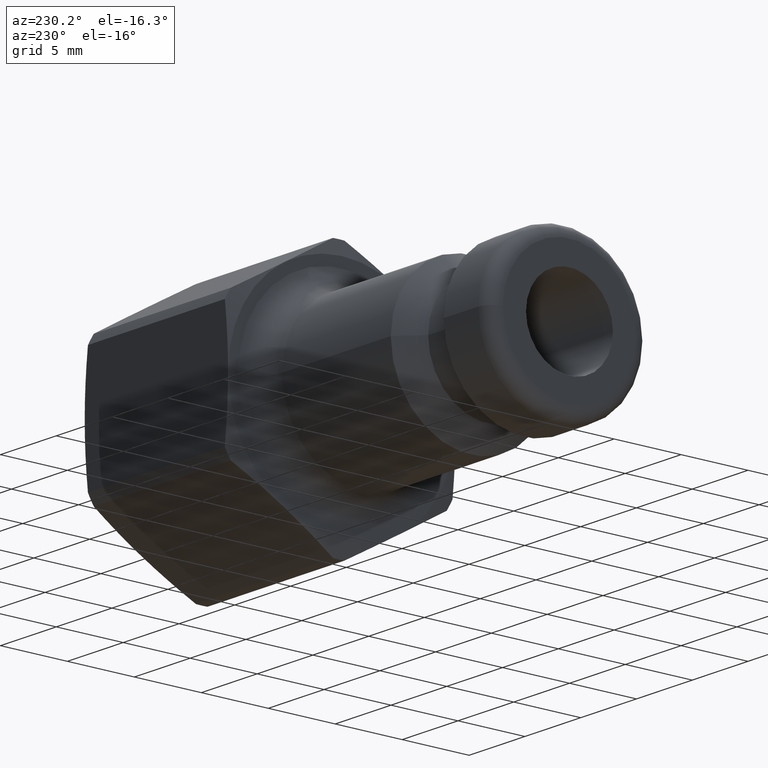
[diagram: clean part render]
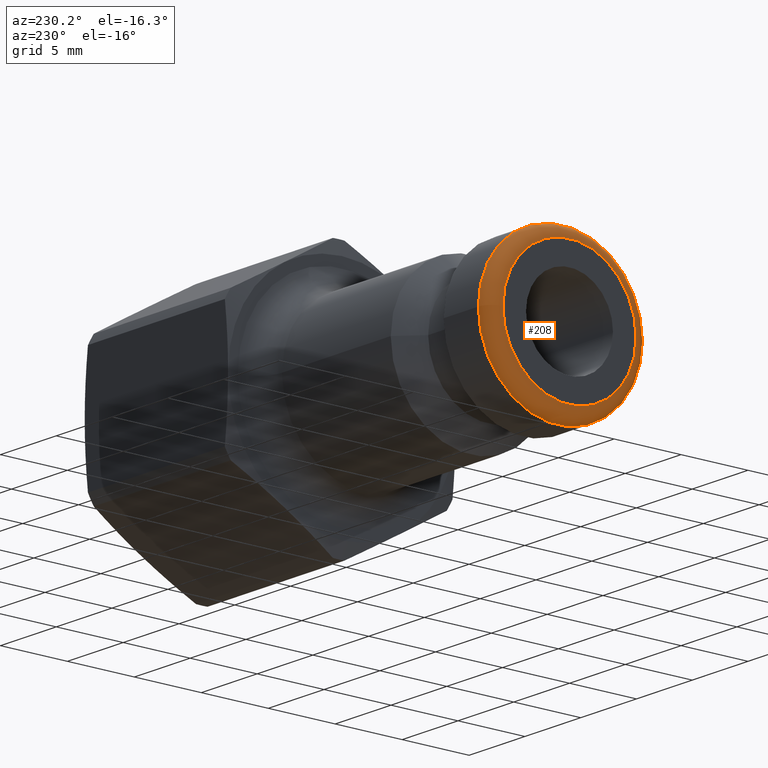
[diagram: same view with one face highlighted and labeled with its STEP entity id]
A machine part, auxiliary view. The second image highlights one B-rep face of the part: STEP entity #208.
In plain terms, the highlighted toroidal blend (fillet) surface has major radius 4.975 mm and minor (blend) radius 1 mm.
Its self-contained STEP definition (entity closure, byte-faithful):
#181=CARTESIAN_POINT('',(1.0,0.0,0.0));
#182=DIRECTION('',(1.0,0.0,0.0));
#183=DIRECTION('',(0.0,0.0,-1.0));
#184=AXIS2_PLACEMENT_3D('',#181,#182,#183);
#185=TOROIDAL_SURFACE('',#184,4.975000000000001,1.0);
#186=CARTESIAN_POINT('',(0.0,4.975000000000001,0.0));
#187=VERTEX_POINT('',#186);
#188=CARTESIAN_POINT('',(0.0,0.0,0.0));
#189=DIRECTION('',(1.0,0.0,0.0));
#190=DIRECTION('',(0.0,-1.0,0.0));
#191=AXIS2_PLACEMENT_3D('',#188,#189,#190);
#192=CIRCLE('',#191,4.975000000000001);
#193=EDGE_CURVE('',#187,#187,#192,.T.);
#194=ORIENTED_EDGE('',*,*,#193,.T.);
#195=EDGE_LOOP('',(#194));
#196=FACE_OUTER_BOUND('',#195,.T.);
#197=CARTESIAN_POINT('',(1.0,5.975000000000001,-1.463453E-015));
#198=VERTEX_POINT('',#197);
#199=CARTESIAN_POINT('',(1.0,0.0,0.0));
#200=DIRECTION('',(-1.0,0.0,0.0));
#201=DIRECTION('',(0.0,-1.0,0.0));
#202=AXIS2_PLACEMENT_3D('',#199,#200,#201);
#203=CIRCLE('',#202,5.975000000000001);
#204=EDGE_CURVE('',#198,#198,#203,.T.);
#205=ORIENTED_EDGE('',*,*,#204,.T.);
#206=EDGE_LOOP('',(#205));
#207=FACE_BOUND('',#206,.T.);
#208=ADVANCED_FACE('',(#196,#207),#185,.T.);